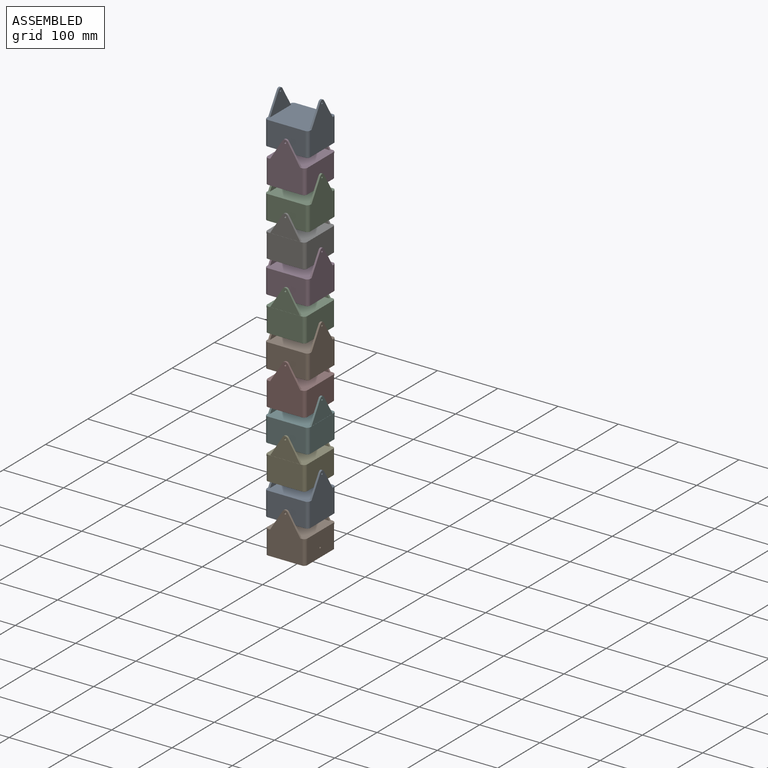
[diagram: assembled view]
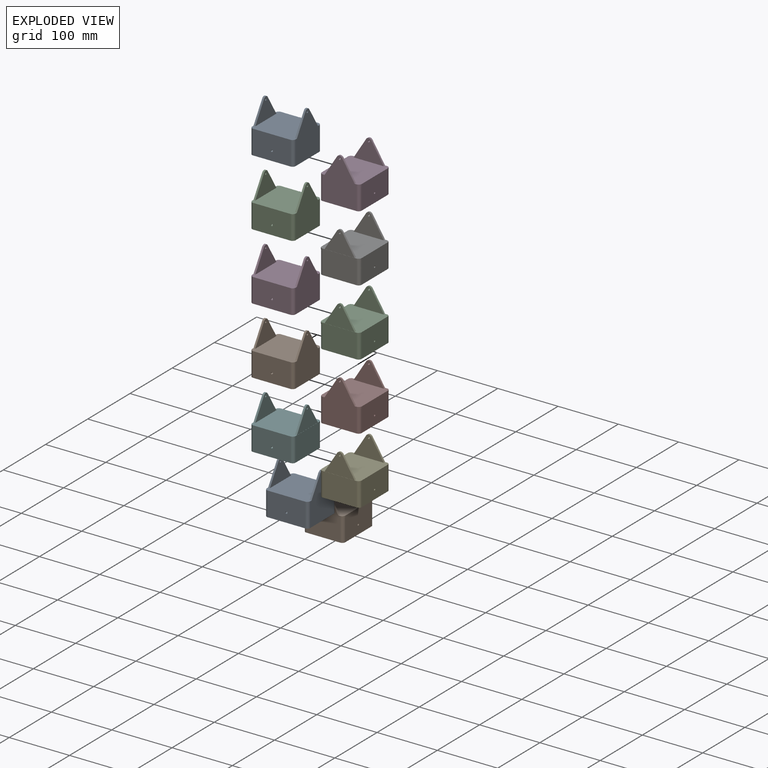
[diagram: exploded view]
GUIDED TOUR — MATED ASSEMBLY (Onshape document b3e24b0ed1801cee542685b6, AutoMate assembly b3e24b0ed1801cee542685b6_c61914f2f0b8bc4f30f1dec1_202b06473cfa04854a1284e7_default)

This assembly has 12 components, labeled P0..P11 below (a component is one placed occurrence of a part; the same part can appear more than once), held together by 11 mates. A mate is a constraint between two components; its type names the relative motion it leaves free:
  REVOLUTE — leaves rotation about the listed axis free (a hinge).
Axis/direction vectors are unit vectors and 'through' points are millimeter coordinates, both in the assembly's world frame.

MATES
  1. REVOLUTE "Revolute 3": P6 <-> P10, axis (0.000, 1.000, 0.000) through (-206.22, -134.45, 33.88) mm
  2. REVOLUTE "Revolute 5": P2 <-> P11, axis (0.000, -1.000, 0.000) through (-206.22, -68.45, -77.26) mm
  3. REVOLUTE "Revolute 2": P8 <-> P3, axis (0.000, -1.000, 0.000) through (-206.22, -134.45, 145.01) mm
  4. REVOLUTE "Revolute 4": P11 <-> P6, axis (1.000, 0.000, 0.000) through (-239.22, -101.45, -21.69) mm
  5. REVOLUTE "Revolute 7": P7 <-> P9, axis (0.000, -1.000, 0.000) through (-206.22, -68.45, -188.39) mm
  6. REVOLUTE "Revolute 9": P4 <-> P5, axis (0.000, 1.000, 0.000) through (-206.22, -134.45, -299.52) mm
  7. REVOLUTE "Revolute 6": P9 <-> P2, axis (-1.000, 0.000, 0.000) through (-173.22, -101.45, -132.82) mm
  8. REVOLUTE "Revolute 11": P1 <-> P0, axis (0.000, -1.000, 0.000) through (-206.22, -68.45, -410.65) mm
  9. REVOLUTE "Revolute 10": P0 <-> P4, axis (1.000, 0.000, 0.000) through (-239.22, -101.45, -355.09) mm
  10. REVOLUTE "Revolute 1": P3 <-> P10, axis (-1.000, 0.000, 0.000) through (-239.22, -101.45, 89.44) mm
  11. REVOLUTE "Revolute 8": P5 <-> P7, axis (-1.000, 0.000, 0.000) through (-173.22, -101.45, -243.95) mm

ASSEMBLY ORDER
  1. P1 — the base component [order verified]
  2. P0 [order verified]
  3. P4 [order verified]
  4. P5 [order verified]
  5. P7 [order verified]
  6. P9 [order verified]
  7. P2 [order verified]
  8. P11 [order verified]
  9. P6 [order verified]
  10. P10 [order verified]
  11. P3 [order verified]
  12. P8 [order verified]
Order-tag legend:
  [order verified] — this step's position reverses a verified removal order: the component was checked to insert without passing through the ones already placed.

Of the 12 components, 12 carry the full construction recipe — the FeatureScript program that regenerates the part's solid from scratch; the rest are supplied as boundary geometry only.
Each toured component is shown spotlighted twice — in the assembled view, then in the exploded view, where a leader line traces a displaced component back to its assembled socket (saturated green if recipe-attached, orange if geometry-only; every other component desaturated gray) — followed by its recipe or geometry summary and the mates that hold it.
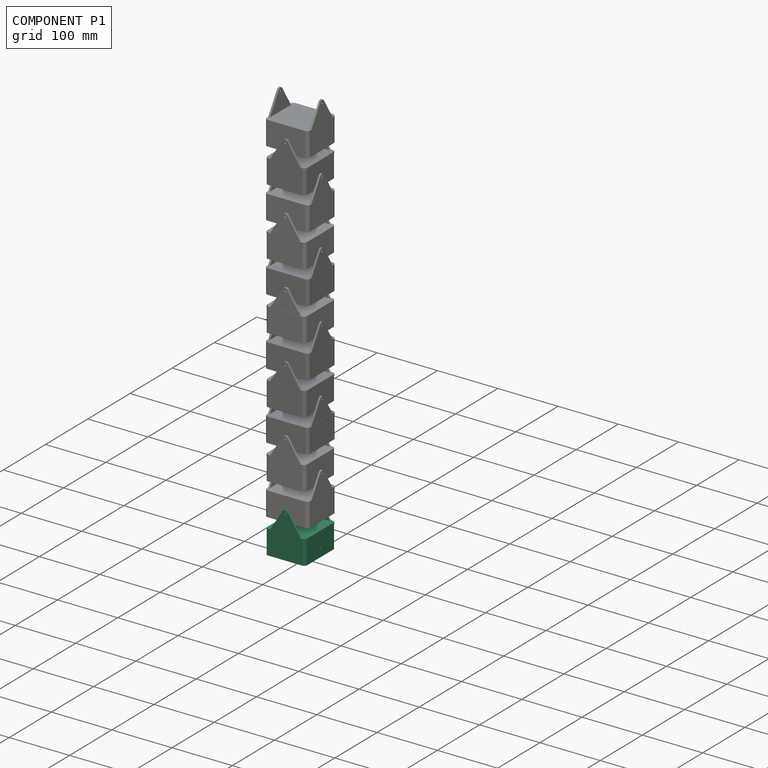
[diagram: component P1 — assembled]
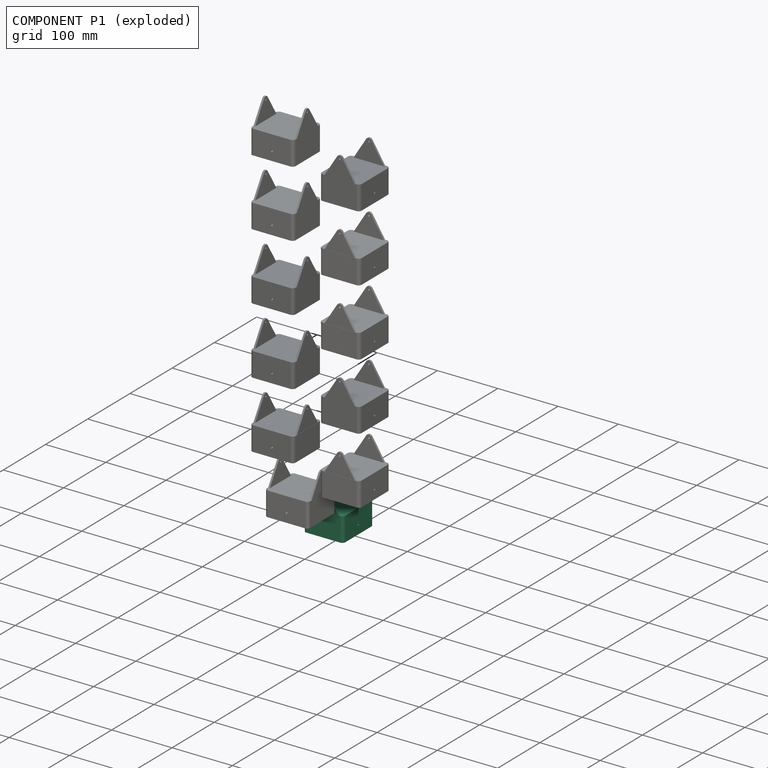
[diagram: component P1 — exploded]
COMPONENT P1 — same part as P0 (CADFS 00962118); its construction recipe is shown at P0.
Held by: REVOLUTE mate "Revolute 11" to P0.
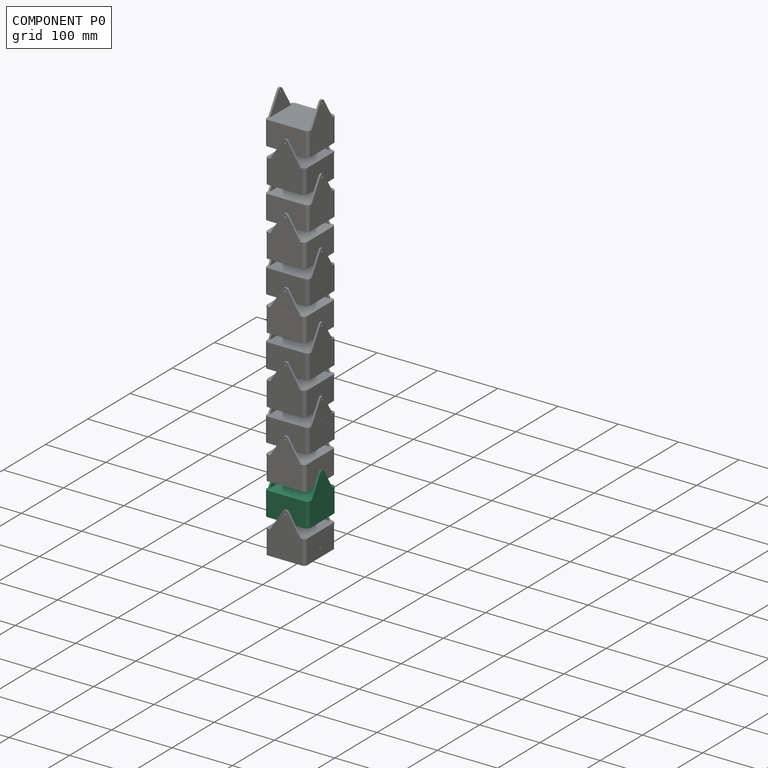
[diagram: component P0 — assembled]
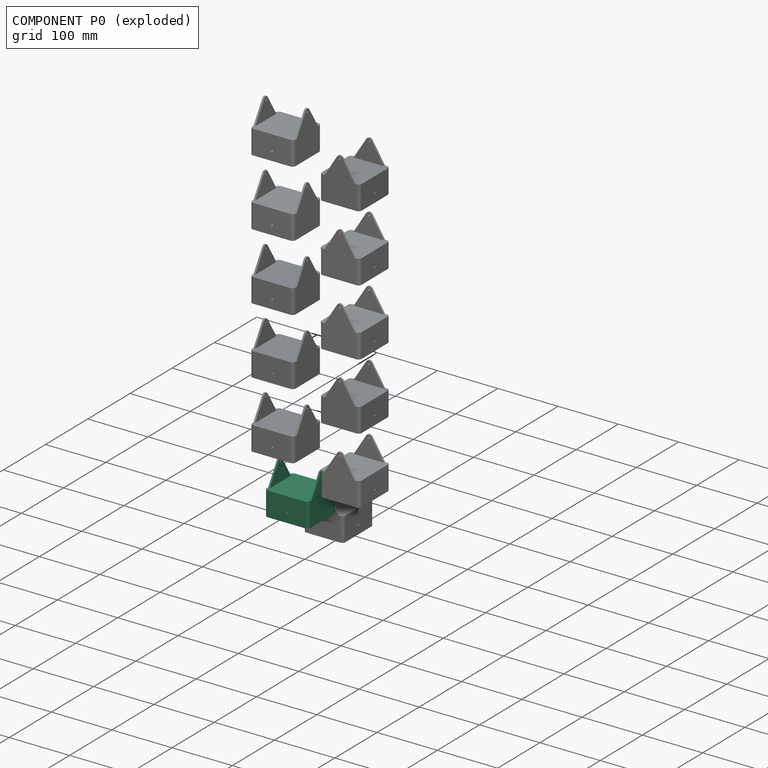
[diagram: component P0 — exploded]
COMPONENT P0 — recipe-attached (CADFS 00962118, mesh-verified: the recipe's output STEP matches this component's geometry to below the mesh-comparison resolution (tessellation chordal tolerance ~0.186 mm)).
Held by: REVOLUTE mate "Revolute 11" to P1; REVOLUTE mate "Revolute 10" to P4.
Construction recipe (FeatureScript — the CAD program that rebuilds this solid; sketch coordinates are in the units given by the * unit suffixes, e.g. mm):

FeatureScript 1511;
import(path : "onshape/std/geometry.fs", version : "1511.0");
import(path : "onshape/std/common.fs", version : "1511.0");
const mm = millimeter;
const VERTEX = EntityType.VERTEX;
const EDGE = EntityType.EDGE;
const FACE = EntityType.FACE;
const BODY = EntityType.BODY;
function v(x, y){return vector(x, y);}
function OD(order){return orderDisambiguation(order);}
function OSD(set){return originalSetDisambiguation(set);}
function TD(topology){return topologyDisambiguation(topology);}
function TDD(query){return trueDependencyDisambiguation(query);}
function sQuery(a, b, c) {return sketchEntityQuery(a, b, c);}

annotation { "Feature Type Name" : "Feature", "Feature Type Description" : "" }
export const myFeature = defineFeature(function(context is Context, id is Id, definition is map)
    precondition{}
    {
        {
            var Q0;
            Q0=qCreatedBy(makeId("Top.planeOp"),FACE);
            var sketch = newSketch(context, id + "F0", { "sketchPlane" : qUnion([Q0])});
            skLineSegment(sketch, "E0.bottom", {"start": v(-1241.02, 753.28) * mm, "end": v(1259.52, 753.28) * mm});
            skLineSegment(sketch, "E0.top", {"start": v(-1241.02, -770.72) * mm, "end": v(1259.52, -770.72) * mm});
            skLineSegment(sketch, "E0.left", {"start": v(-1241.02, 753.28) * mm, "end": v(-1241.02, -770.72) * mm});
            skLineSegment(sketch, "E0.right", {"start": v(1259.52, 753.28) * mm, "end": v(1259.52, -770.72) * mm});
            skLineSegment(sketch, "E1.bottom", {"start": v(-95.16, -71.78) * mm, "end": v(-39.16, -71.78) * mm});
            skLineSegment(sketch, "E1.top", {"start": v(-95.16, -131.78) * mm, "end": v(-39.16, -131.78) * mm});
            skLineSegment(sketch, "E1.left", {"start": v(-100.16, -76.78) * mm, "end": v(-100.16, -126.78) * mm});
            skLineSegment(sketch, "E1.right", {"start": v(-34.16, -76.78) * mm, "end": v(-34.16, -126.78) * mm});
            skLineSegment(sketch, "E2.0", {"start": v(-103.16, -73.78) * mm, "end": v(-103.16, -129.78) * mm});
            skLineSegment(sketch, "E2.1", {"start": v(-98.16, -68.78) * mm, "end": v(-36.16, -68.78) * mm});
            skLineSegment(sketch, "E2.2", {"start": v(-31.16, -73.78) * mm, "end": v(-31.16, -129.78) * mm});
            skLineSegment(sketch, "E2.3", {"start": v(-98.16, -134.78) * mm, "end": v(-36.16, -134.78) * mm});
            skPoint(sketch, "E3.visualSharp", {"position": v(-100.16, -71.78) * mm});
            skArc(sketch, "E3.filletArc", {"start": v(-95.16, -71.78) * mm, "mid": v(-98.7, -73.25) * mm, "end": v(-100.16, -76.78) * mm});
            skPoint(sketch, "E4.visualSharp", {"position": v(-34.16, -71.78) * mm});
            skArc(sketch, "E4.filletArc", {"start": v(-34.16, -76.78) * mm, "mid": v(-35.62, -73.25) * mm, "end": v(-39.16, -71.78) * mm});
            skPoint(sketch, "E5.visualSharp", {"position": v(-100.16, -131.78) * mm});
            skArc(sketch, "E5.filletArc", {"start": v(-100.16, -126.78) * mm, "mid": v(-98.7, -130.32) * mm, "end": v(-95.16, -131.78) * mm});
            skPoint(sketch, "E6.visualSharp", {"position": v(-34.16, -131.78) * mm});
            skArc(sketch, "E6.filletArc", {"start": v(-39.16, -131.78) * mm, "mid": v(-35.62, -130.32) * mm, "end": v(-34.16, -126.78) * mm});
            skPoint(sketch, "E7.visualSharp", {"position": v(-103.16, -68.78) * mm});
            skArc(sketch, "E7.filletArc", {"start": v(-98.16, -68.78) * mm, "mid": v(-101.7, -70.25) * mm, "end": v(-103.16, -73.78) * mm});
            skPoint(sketch, "E8.visualSharp", {"position": v(-31.16, -68.78) * mm});
            skArc(sketch, "E8.filletArc", {"start": v(-31.16, -73.78) * mm, "mid": v(-32.62, -70.25) * mm, "end": v(-36.16, -68.78) * mm});
            skPoint(sketch, "E9.visualSharp", {"position": v(-31.16, -134.78) * mm});
            skArc(sketch, "E9.filletArc", {"start": v(-36.16, -134.78) * mm, "mid": v(-32.62, -133.32) * mm, "end": v(-31.16, -129.78) * mm});
            skPoint(sketch, "E10.visualSharp", {"position": v(-103.16, -134.78) * mm});
            skArc(sketch, "E10.filletArc", {"start": v(-103.16, -129.78) * mm, "mid": v(-101.7, -133.32) * mm, "end": v(-98.16, -134.78) * mm});
            skSolve(sketch);
        }
        {
            var Q0;
            Q0=makeQuery(id+"F0.imprint","IMPRINT",FACE,{"disambiguationData":[TD([[makeQuery(id+"F0.imprint","IMPRINT",EDGE,{"derivedFrom":sQuery(id+"F0.wireOp",EDGE,"E1.bottom")}),1.0]])]});
            extrude(context, id + "F1", {"entities" : qUnion([Q0]), "depth" : 40 * mm, "offsetDistance" : 25 * mm});
        }
        {
            var Q0;
            Q0=makeQuery(id+"F1.opExtrude","SWEPT_FACE",FACE,{"disambiguationData":[OSD([sQuery(id+"F0.wireOp",EDGE,"E1.left")])]});
            var sketch = newSketch(context, id + "F2", { "sketchPlane" : qUnion([Q0])});
            skLineSegment(sketch, "E11", {"start": v(-126.78, 40) * mm, "end": v(-106.02, 73.22) * mm});
            skLineSegment(sketch, "E12", {"start": v(-76.78, 40) * mm, "end": v(-97.54, 73.22) * mm});
            skPoint(sketch, "E13.start.orphan", {"position": v(-101.78, 40) * mm});
            skPoint(sketch, "E14.visualSharp", {"position": v(-101.78, 80) * mm});
            skArc(sketch, "E14.filletArc", {"start": v(-97.54, 73.22) * mm, "mid": v(-101.78, 75.57) * mm, "end": v(-106.02, 73.22) * mm});
            skSolve(sketch);
        }
        {
            var Q0;
            Q0 = qSketchRegion(id + "F2", true);
            var Q1;
            Q1=makeQuery(id+"F2.imprint","IMPRINT",FACE,{"disambiguationData":[TD([[makeQuery(id+"F2.imprint","IMPRINT",EDGE,{"derivedFrom":sQuery(id+"F2.wireOp",EDGE,"E11")}),-1.0]])]});
            extrude(context, id + "F3", {"entities" : qUnion([Q0, Q1]), "operationType" : NewBodyOperationType.ADD, "oppositeDirection" : true, "depth" : 3 * mm, "offsetDistance" : 25 * mm});
        }
        {
            var Q0;
            Q0=makeQuery(id+"F1.opExtrude","SWEPT_FACE",FACE,{"disambiguationData":[OSD([sQuery(id+"F0.wireOp",EDGE,"E1.right")])]});
            var sketch = newSketch(context, id + "F4", { "sketchPlane" : qUnion([Q0])});
            skLineSegment(sketch, "E15", {"start": v(76.78, 40) * mm, "end": v(97.54, 73.22) * mm});
            skLineSegment(sketch, "E16", {"start": v(126.78, 40) * mm, "end": v(106.02, 73.22) * mm});
            skLineSegment(sketch, "E17", {"start": v(126.78, 40) * mm, "end": v(80.84, 40) * mm});
            skPoint(sketch, "E18.start.orphan", {"position": v(101.78, 40) * mm});
            skPoint(sketch, "E19.visualSharp", {"position": v(101.78, 80) * mm});
            skArc(sketch, "E19.filletArc", {"start": v(106.02, 73.22) * mm, "mid": v(101.78, 75.57) * mm, "end": v(97.54, 73.22) * mm});
            skSolve(sketch);
        }
        {
            var Q0;
            {var subQ1=sQuery(id+"F4.wireOp",EDGE,"E15");Q0=makeQuery(id+"F4.imprint","IMPRINT",FACE,{"disambiguationData":[TD([[makeQuery(id+"F4.imprint","IMPRINT",EDGE,{"derivedFrom":subQ1}),-1.0]])]});}
            extrude(context, id + "F5", {"entities" : qUnion([Q0]), "operationType" : NewBodyOperationType.ADD, "oppositeDirection" : true, "depth" : 3 * mm, "offsetDistance" : 25 * mm});
        }
        {
            var Q0;
            {var subQ0=sQuery(id+"F0.wireOp",EDGE,"E6.filletArc");var subQ1=sQuery(id+"F0.wireOp",EDGE,"E5.filletArc");var subQ2=sQuery(id+"F0.wireOp",EDGE,"E2.3");var subQ3=sQuery(id+"F0.wireOp",EDGE,"E2.2");var subQ4=sQuery(id+"F0.wireOp",EDGE,"E1.top");var subQ5=sQuery(id+"F0.wireOp",EDGE,"E1.left");var subQ7=sQuery(id+"F0.wireOp",EDGE,"E9.filletArc");var subQ8=sQuery(id+"F0.wireOp",EDGE,"E1.right");var subQ11=sQuery(id+"F0.wireOp",EDGE,"E10.filletArc");var subQ12=sQuery(id+"F0.wireOp",EDGE,"E2.0");Q0=makeQuery(id+"F5.boolean.opBoolean","SPLIT",FACE,{"disambiguationData":[TD([makeQuery(id+"F1.opExtrude","SWEPT_FACE",FACE,{"disambiguationData":[OSD([subQ4])]})])],"derivedFrom":makeQuery(id+"F1.opExtrude","CAP_FACE",FACE,{"disambiguationData":[OSD([sQuery(id+"F0.wireOp",EDGE,"E1.bottom"),subQ4,subQ5,subQ8,subQ12,sQuery(id+"F0.wireOp",EDGE,"E2.1"),subQ3,subQ2,sQuery(id+"F0.wireOp",EDGE,"E3.filletArc"),sQuery(id+"F0.wireOp",EDGE,"E4.filletArc"),subQ1,subQ0,sQuery(id+"F0.wireOp",EDGE,"E7.filletArc"),sQuery(id+"F0.wireOp",EDGE,"E8.filletArc"),subQ7,subQ11])],"isStart":false})});}
            var sketch = newSketch(context, id + "F6", { "sketchPlane" : qUnion([Q0])});
            skLineSegment(sketch, "E20.bottom", {"start": v(-98.38, -68.58) * mm, "end": v(-36.38, -68.58) * mm});
            skLineSegment(sketch, "E20.top", {"start": v(-98.38, -134.58) * mm, "end": v(-36.38, -134.58) * mm});
            skLineSegment(sketch, "E20.left", {"start": v(-103.38, -73.58) * mm, "end": v(-103.38, -129.58) * mm});
            skLineSegment(sketch, "E20.right", {"start": v(-31.38, -73.58) * mm, "end": v(-31.38, -129.58) * mm});
            skPoint(sketch, "E21.visualSharp", {"position": v(-103.38, -68.58) * mm});
            skArc(sketch, "E21.filletArc", {"start": v(-98.38, -68.58) * mm, "mid": v(-101.91, -70.04) * mm, "end": v(-103.38, -73.58) * mm});
            skPoint(sketch, "E22.visualSharp", {"position": v(-31.38, -68.58) * mm});
            skArc(sketch, "E22.filletArc", {"start": v(-31.38, -73.58) * mm, "mid": v(-32.84, -70.04) * mm, "end": v(-36.38, -68.58) * mm});
            skPoint(sketch, "E23.visualSharp", {"position": v(-31.38, -134.58) * mm});
            skArc(sketch, "E23.filletArc", {"start": v(-36.38, -134.58) * mm, "mid": v(-32.84, -133.12) * mm, "end": v(-31.38, -129.58) * mm});
            skPoint(sketch, "E24.visualSharp", {"position": v(-103.38, -134.58) * mm});
            skArc(sketch, "E24.filletArc", {"start": v(-103.38, -129.58) * mm, "mid": v(-101.91, -133.12) * mm, "end": v(-98.38, -134.58) * mm});
            skSolve(sketch);
        }
        {
            var Q0;
            Q0=makeQuery(id+"F6.imprint","IMPRINT",FACE,{"disambiguationData":[TD([[makeQuery(id+"F6.imprint","IMPRINT",EDGE,{"derivedFrom":sQuery(id+"F6.wireOp",EDGE,"E20.bottom")}),-1.0]])]});
            extrude(context, id + "F7", {"entities" : qUnion([Q0]), "operationType" : NewBodyOperationType.ADD, "oppositeDirection" : true, "depth" : 3 * mm, "offsetDistance" : 25 * mm});
        }
        {
            var Q0;
            Q0=makeQuery(id+"F5.boolean.opBoolean","MERGE",FACE,{"derivedFrom":[makeQuery(id+"F1.opExtrude","SWEPT_FACE",FACE,{"disambiguationData":[OSD([sQuery(id+"F0.wireOp",EDGE,"E2.2")])]}),makeQuery(id+"F5.opExtrude","CAP_FACE",FACE,{"disambiguationData":[OSD([sQuery(id+"F0.wireOp",EDGE,"E1.right"),sQuery(id+"F4.wireOp",EDGE,"E15"),sQuery(id+"F4.wireOp",EDGE,"E16"),sQuery(id+"F4.wireOp",EDGE,"E17"),sQuery(id+"F4.wireOp",EDGE,"E19.filletArc")])],"isStart":false})]});
            var sketch = newSketch(context, id + "F8", { "sketchPlane" : qUnion([Q0])});
            skPoint(sketch, "E25", {"position": v(-101.78, 70.57) * mm});
            skSolve(sketch);
        }
        {
            var Q0;
            Q0=sQuery(id+"F8.wireOp",VERTEX,"E25");
            var Q1;
            Q1=makeQuery(id+"F1.opExtrude","SWEPT_BODY",BODY,{"disambiguationData":[OSD([sQuery(id+"F0.wireOp",EDGE,"E1.bottom"),sQuery(id+"F0.wireOp",EDGE,"E1.top"),sQuery(id+"F0.wireOp",EDGE,"E1.left"),sQuery(id+"F0.wireOp",EDGE,"E1.right"),sQuery(id+"F0.wireOp",EDGE,"E2.0"),sQuery(id+"F0.wireOp",EDGE,"E2.1"),sQuery(id+"F0.wireOp",EDGE,"E2.2"),sQuery(id+"F0.wireOp",EDGE,"E2.3"),sQuery(id+"F0.wireOp",EDGE,"E3.filletArc"),sQuery(id+"F0.wireOp",EDGE,"E4.filletArc"),sQuery(id+"F0.wireOp",EDGE,"E5.filletArc"),sQuery(id+"F0.wireOp",EDGE,"E6.filletArc"),sQuery(id+"F0.wireOp",EDGE,"E7.filletArc"),sQuery(id+"F0.wireOp",EDGE,"E8.filletArc"),sQuery(id+"F0.wireOp",EDGE,"E9.filletArc"),sQuery(id+"F0.wireOp",EDGE,"E10.filletArc")])]});
            hole(context, id + "F9", {"style" : HoleStyle.SIMPLE, "endStyle" : HoleEndStyle.THROUGH, "holeDiameter" : 3.1 * mm, "majorDiameter" : 5 * mm, "isTappedThrough" : true, "tappedDepth" : 12 * mm, "tapClearance" : 3, "locations" : qUnion([Q0]), "scope" : qUnion([Q1])});
        }
        {
            var Q0;
            Q0=makeQuery(id+"F1.opExtrude","SWEPT_FACE",FACE,{"disambiguationData":[OSD([sQuery(id+"F0.wireOp",EDGE,"E2.3")])]});
            var sketch = newSketch(context, id + "F10", { "sketchPlane" : qUnion([Q0])});
            skPoint(sketch, "E26", {"position": v(-67.16, 15) * mm});
            skPoint(sketch, "E26.positionSnap0", {"position": v(-67.16, 0) * mm});
            skSolve(sketch);
        }
        {
            var Q0;
            Q0=sQuery(id+"F10.wireOp",VERTEX,"E26");
            var Q1;
            Q1=makeQuery(id+"F1.opExtrude","SWEPT_BODY",BODY,{"disambiguationData":[OSD([sQuery(id+"F0.wireOp",EDGE,"E1.bottom"),sQuery(id+"F0.wireOp",EDGE,"E1.top"),sQuery(id+"F0.wireOp",EDGE,"E1.left"),sQuery(id+"F0.wireOp",EDGE,"E1.right"),sQuery(id+"F0.wireOp",EDGE,"E2.0"),sQuery(id+"F0.wireOp",EDGE,"E2.1"),sQuery(id+"F0.wireOp",EDGE,"E2.2"),sQuery(id+"F0.wireOp",EDGE,"E2.3"),sQuery(id+"F0.wireOp",EDGE,"E3.filletArc"),sQuery(id+"F0.wireOp",EDGE,"E4.filletArc"),sQuery(id+"F0.wireOp",EDGE,"E5.filletArc"),sQuery(id+"F0.wireOp",EDGE,"E6.filletArc"),sQuery(id+"F0.wireOp",EDGE,"E7.filletArc"),sQuery(id+"F0.wireOp",EDGE,"E8.filletArc"),sQuery(id+"F0.wireOp",EDGE,"E9.filletArc"),sQuery(id+"F0.wireOp",EDGE,"E10.filletArc")])]});
            hole(context, id + "F11", {"style" : HoleStyle.SIMPLE, "endStyle" : HoleEndStyle.THROUGH, "holeDiameter" : 3.1 * mm, "majorDiameter" : 5 * mm, "isTappedThrough" : true, "tappedDepth" : 12 * mm, "tapClearance" : 3, "locations" : qUnion([Q0]), "scope" : qUnion([Q1])});
        }
    });
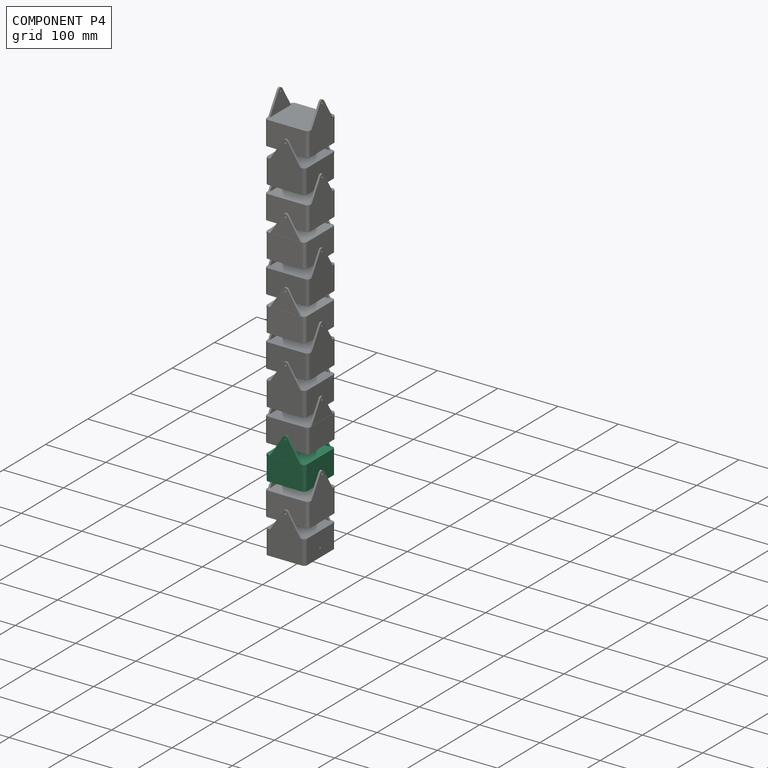
[diagram: component P4 — assembled]
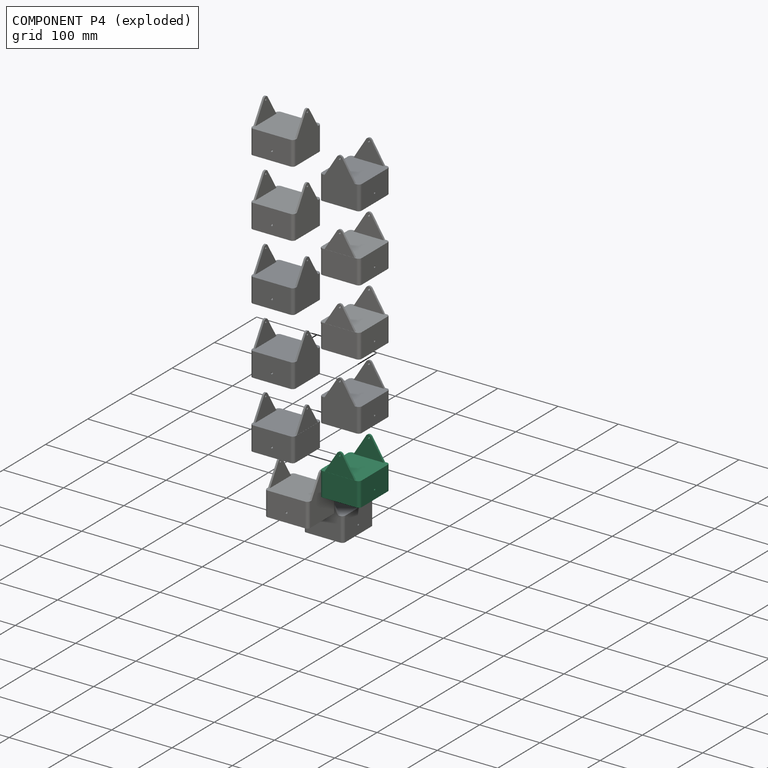
[diagram: component P4 — exploded]
COMPONENT P4 — same part as P0 (CADFS 00962118); its construction recipe is shown at P0.
Held by: REVOLUTE mate "Revolute 9" to P5; REVOLUTE mate "Revolute 10" to P0.
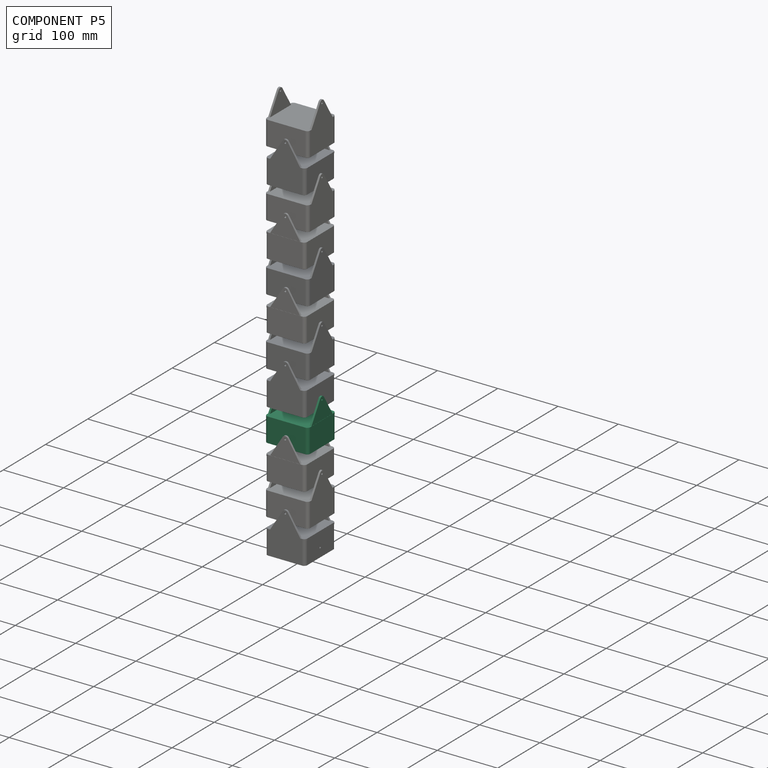
[diagram: component P5 — assembled]
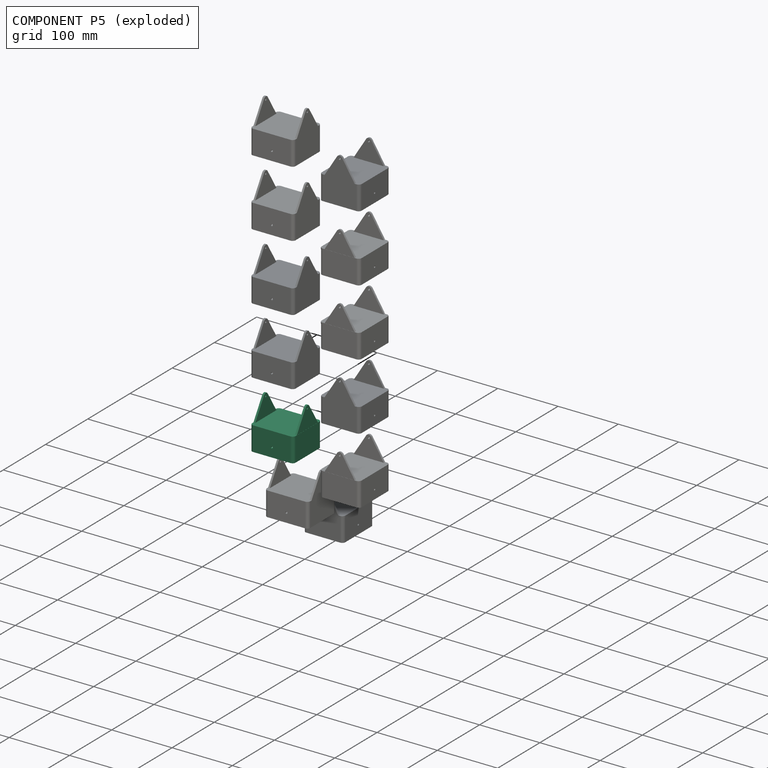
[diagram: component P5 — exploded]
COMPONENT P5 — same part as P0 (CADFS 00962118); its construction recipe is shown at P0.
Held by: REVOLUTE mate "Revolute 9" to P4; REVOLUTE mate "Revolute 8" to P7.
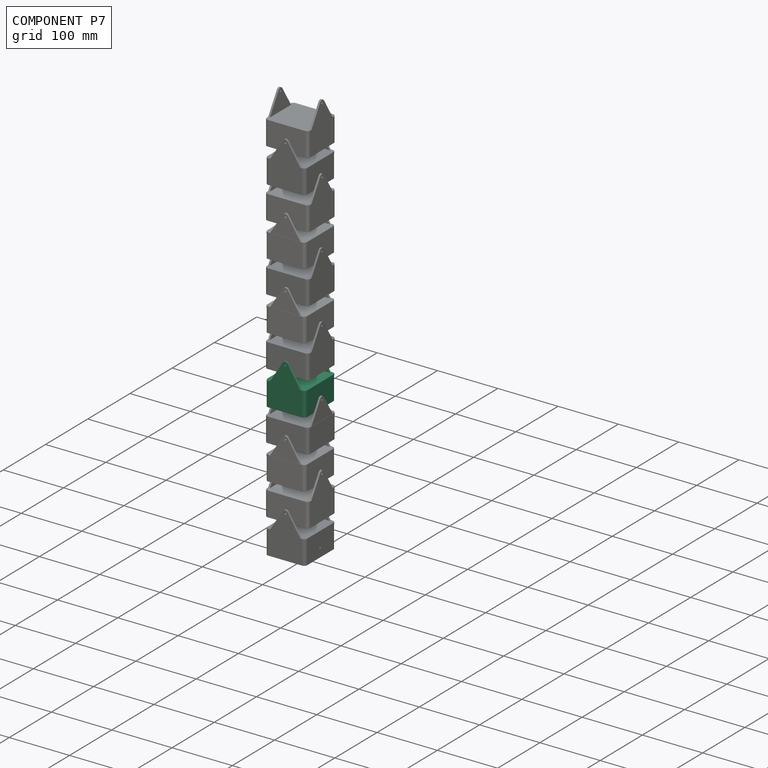
[diagram: component P7 — assembled]
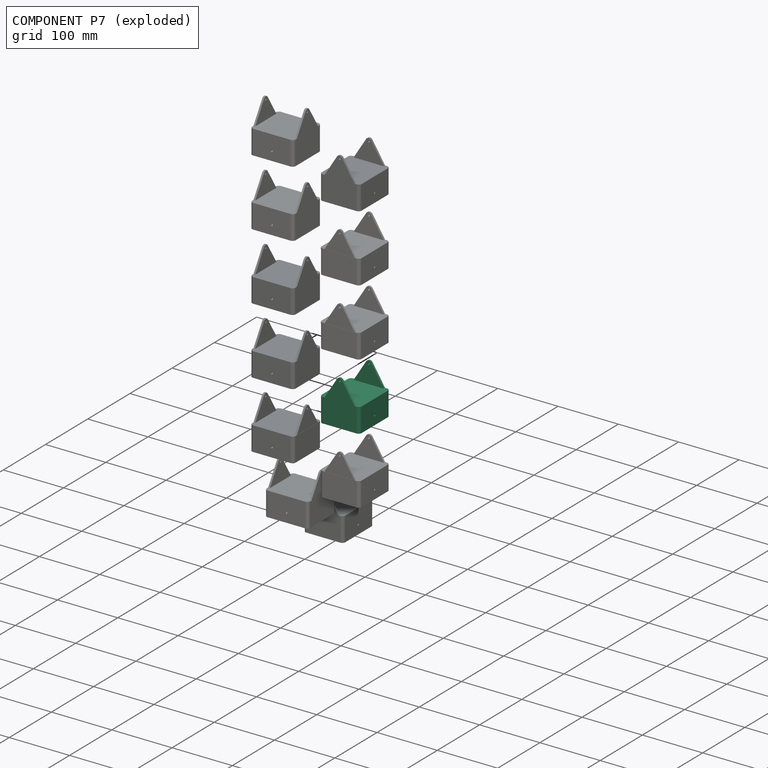
[diagram: component P7 — exploded]
COMPONENT P7 — same part as P0 (CADFS 00962118); its construction recipe is shown at P0.
Held by: REVOLUTE mate "Revolute 7" to P9; REVOLUTE mate "Revolute 8" to P5.
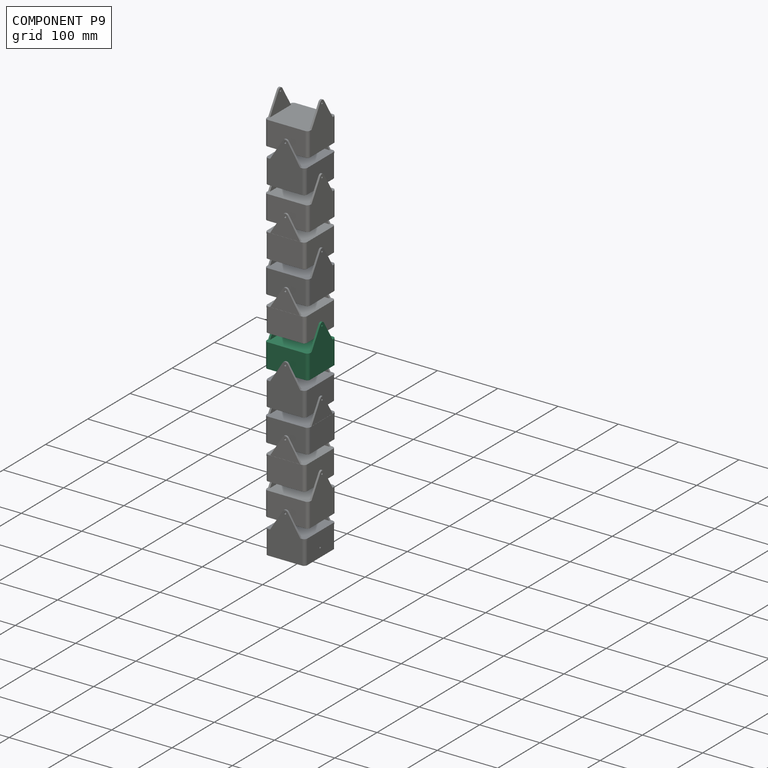
[diagram: component P9 — assembled]
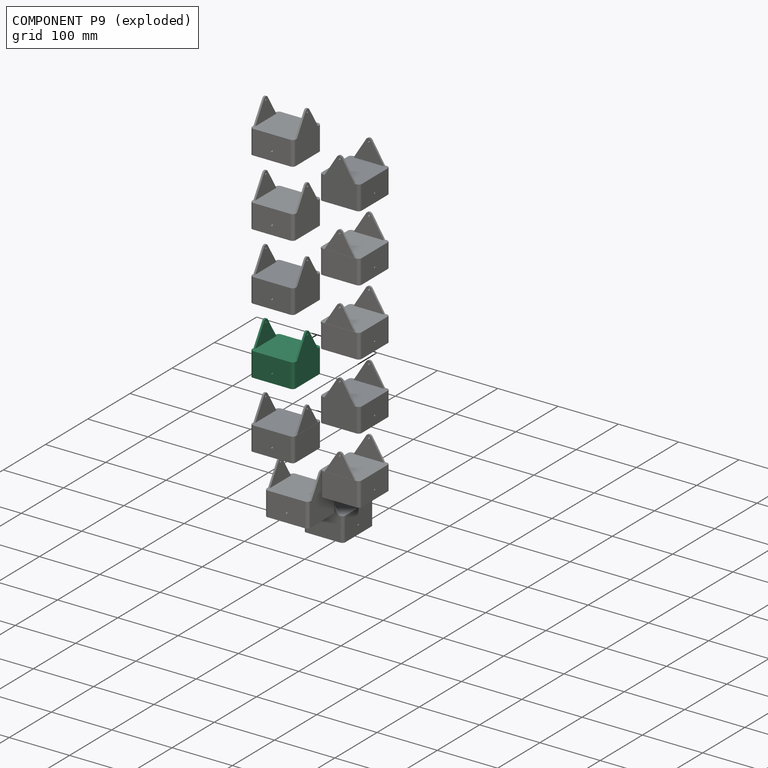
[diagram: component P9 — exploded]
COMPONENT P9 — same part as P0 (CADFS 00962118); its construction recipe is shown at P0.
Held by: REVOLUTE mate "Revolute 7" to P7; REVOLUTE mate "Revolute 6" to P2.
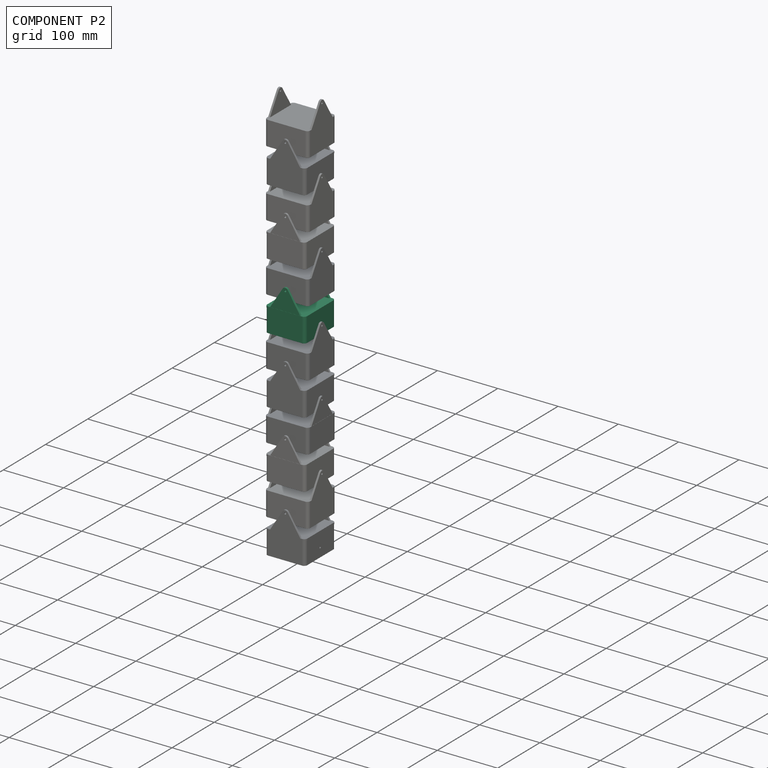
[diagram: component P2 — assembled]
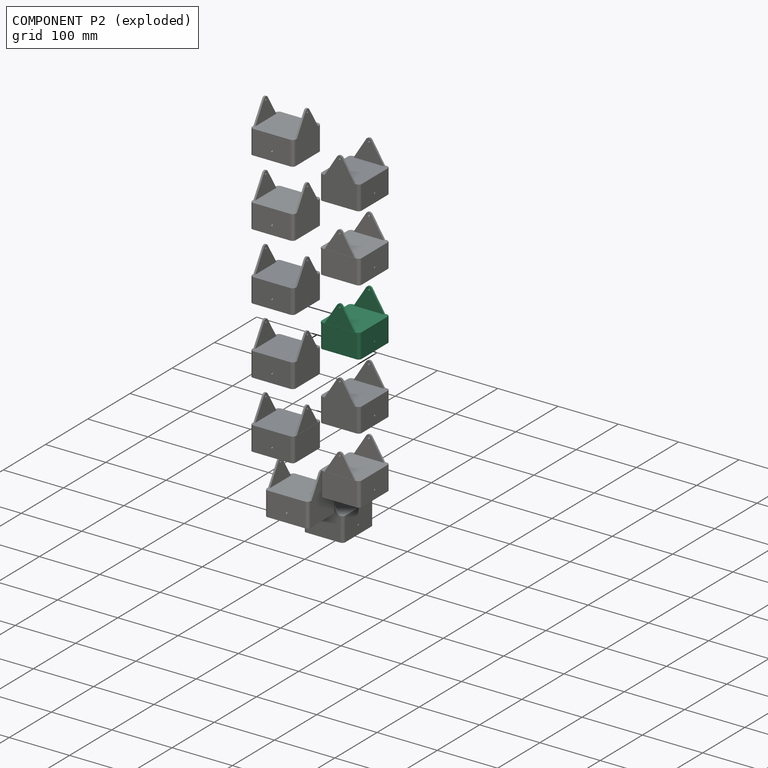
[diagram: component P2 — exploded]
COMPONENT P2 — same part as P0 (CADFS 00962118); its construction recipe is shown at P0.
Held by: REVOLUTE mate "Revolute 5" to P11; REVOLUTE mate "Revolute 6" to P9.
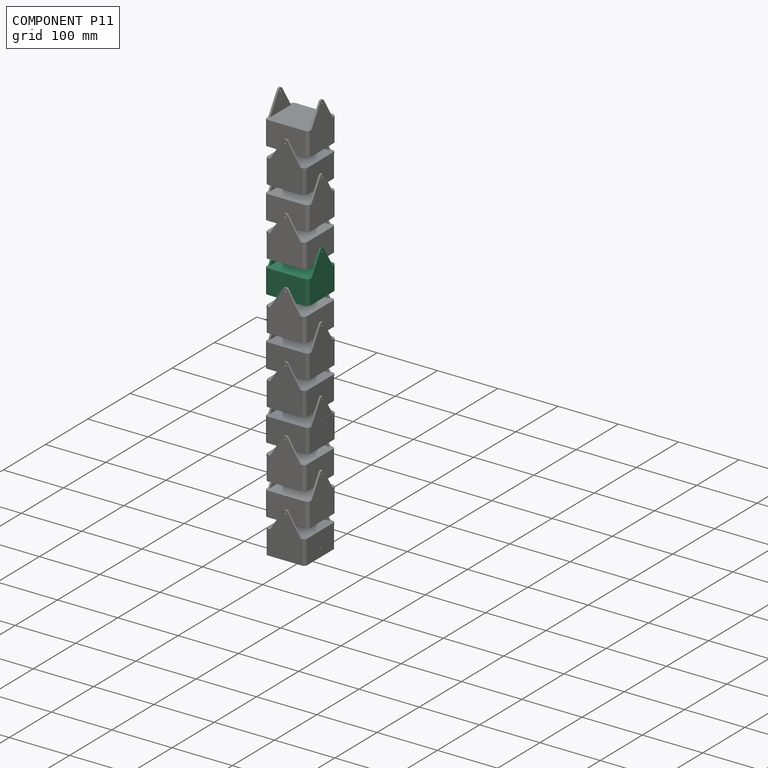
[diagram: component P11 — assembled]
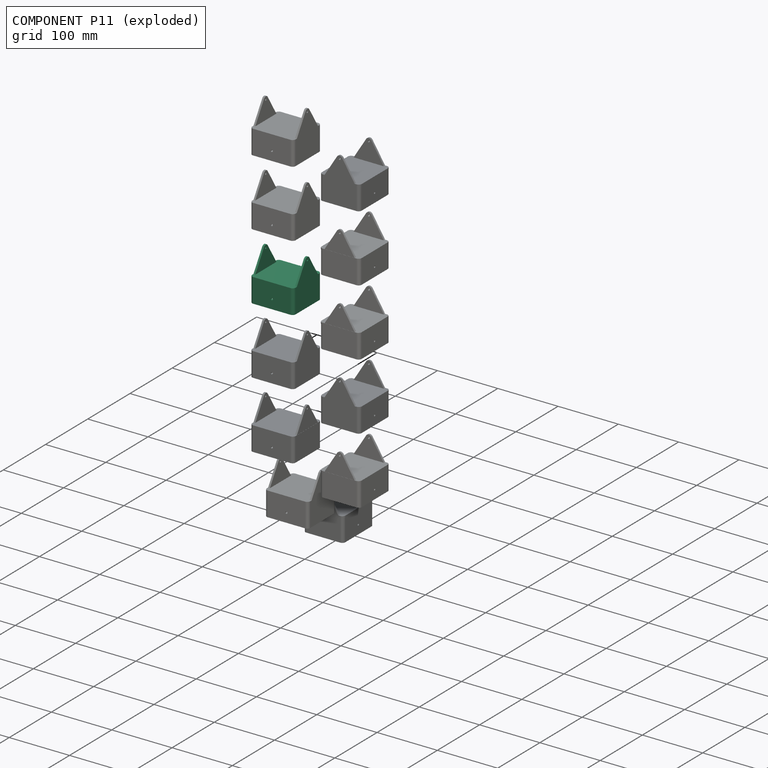
[diagram: component P11 — exploded]
COMPONENT P11 — same part as P0 (CADFS 00962118); its construction recipe is shown at P0.
Held by: REVOLUTE mate "Revolute 5" to P2; REVOLUTE mate "Revolute 4" to P6.
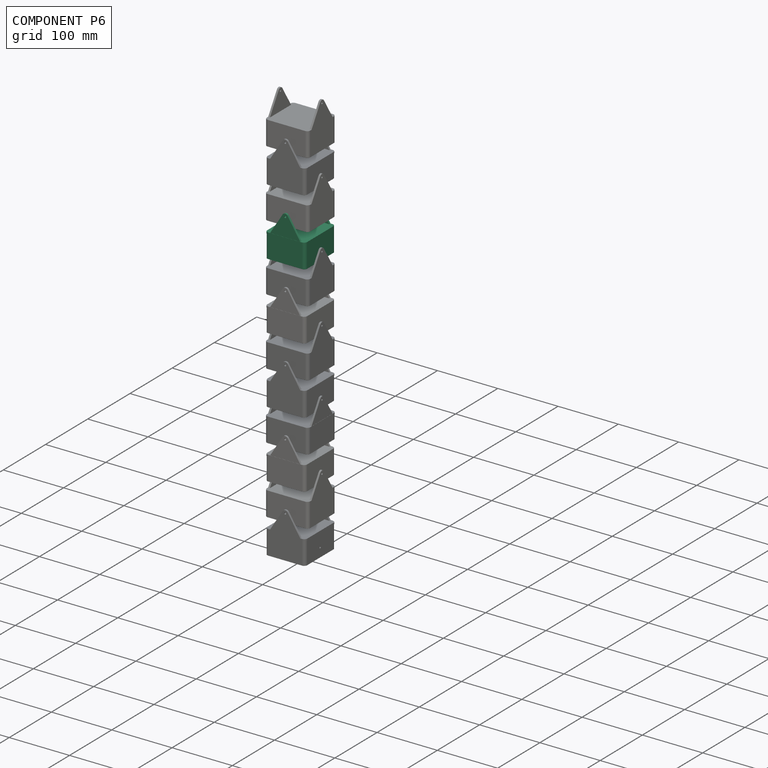
[diagram: component P6 — assembled]
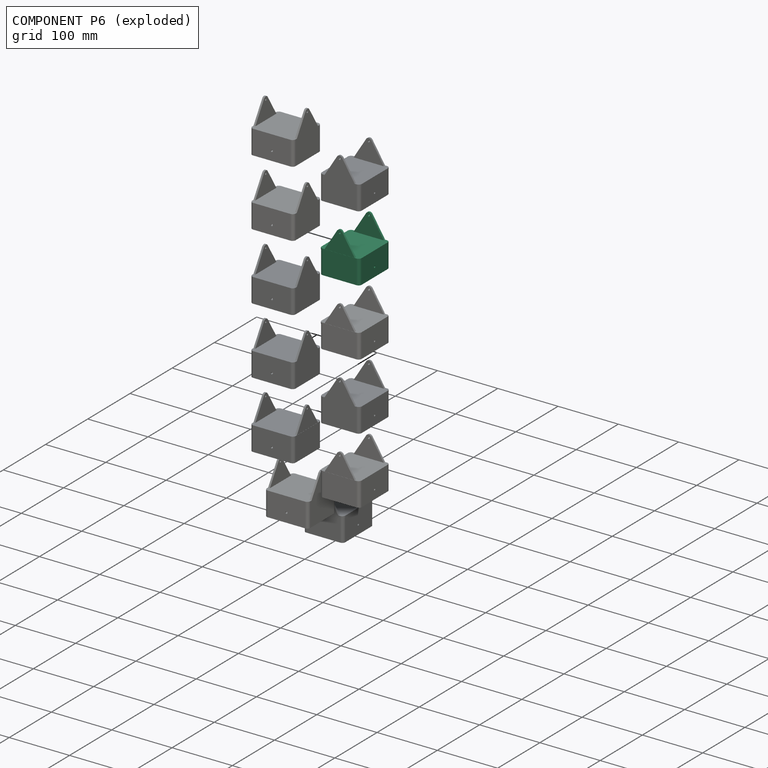
[diagram: component P6 — exploded]
COMPONENT P6 — same part as P0 (CADFS 00962118); its construction recipe is shown at P0.
Held by: REVOLUTE mate "Revolute 3" to P10; REVOLUTE mate "Revolute 4" to P11.
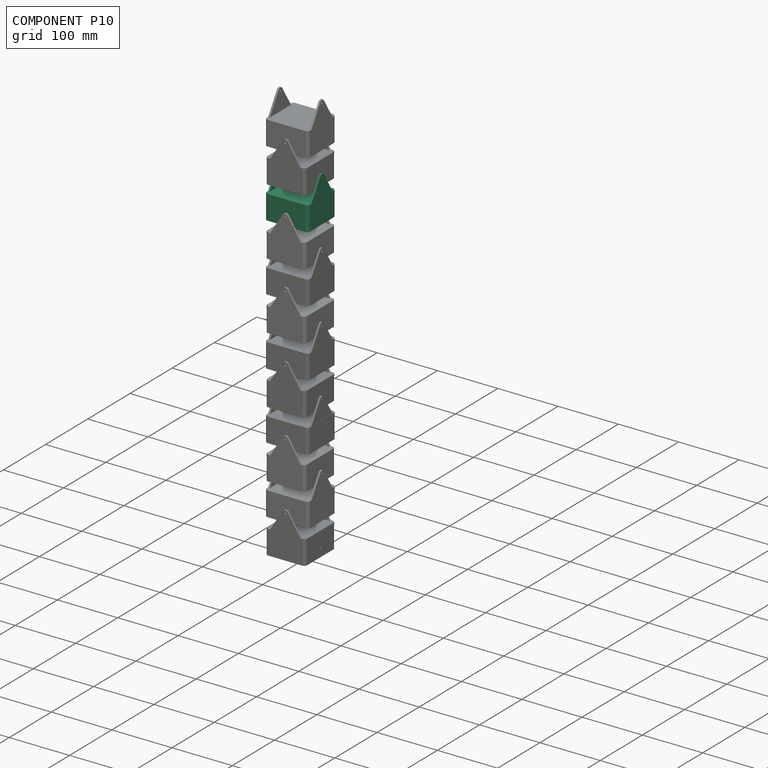
[diagram: component P10 — assembled]
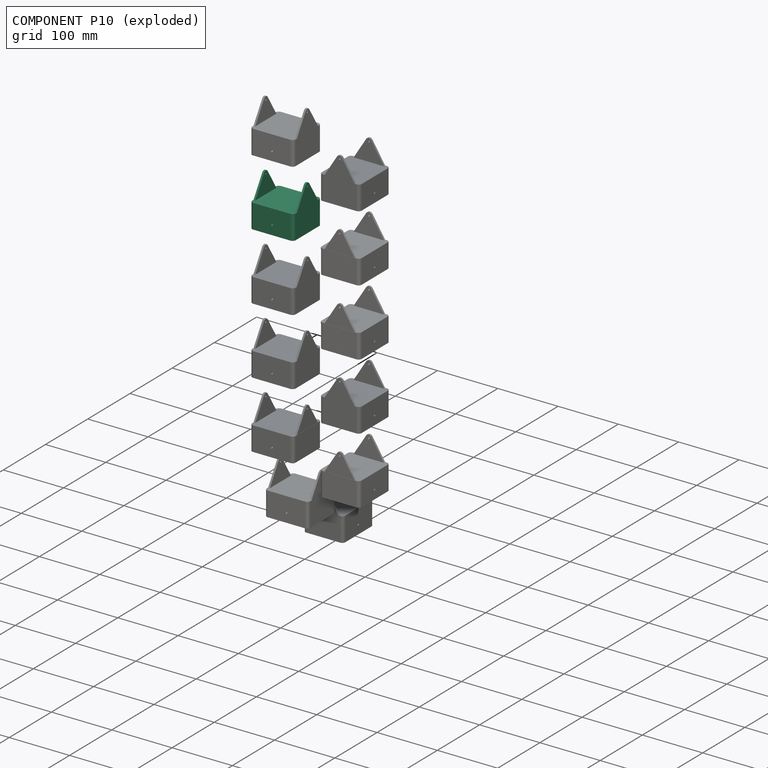
[diagram: component P10 — exploded]
COMPONENT P10 — same part as P0 (CADFS 00962118); its construction recipe is shown at P0.
Held by: REVOLUTE mate "Revolute 3" to P6; REVOLUTE mate "Revolute 1" to P3.
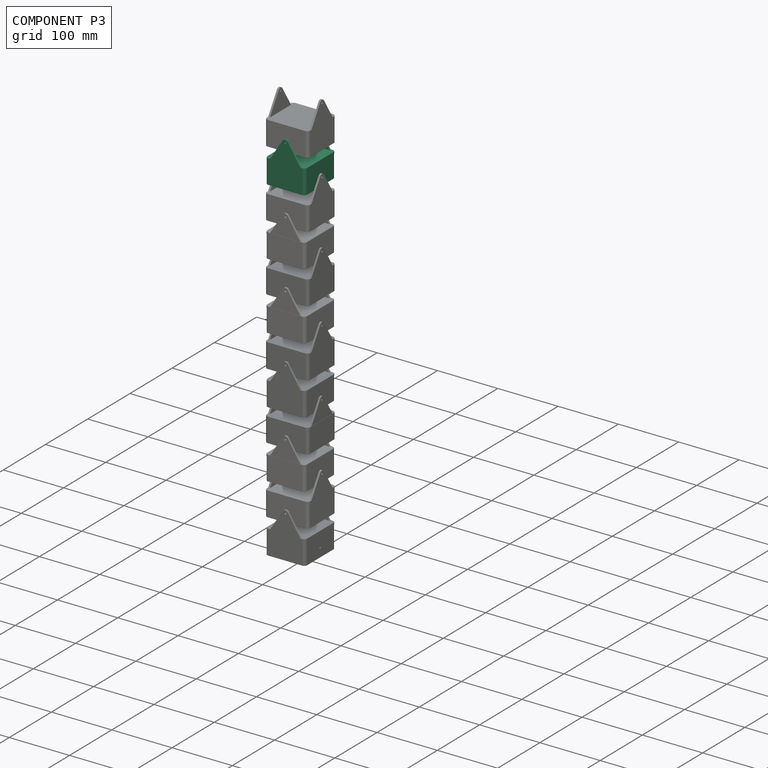
[diagram: component P3 — assembled]
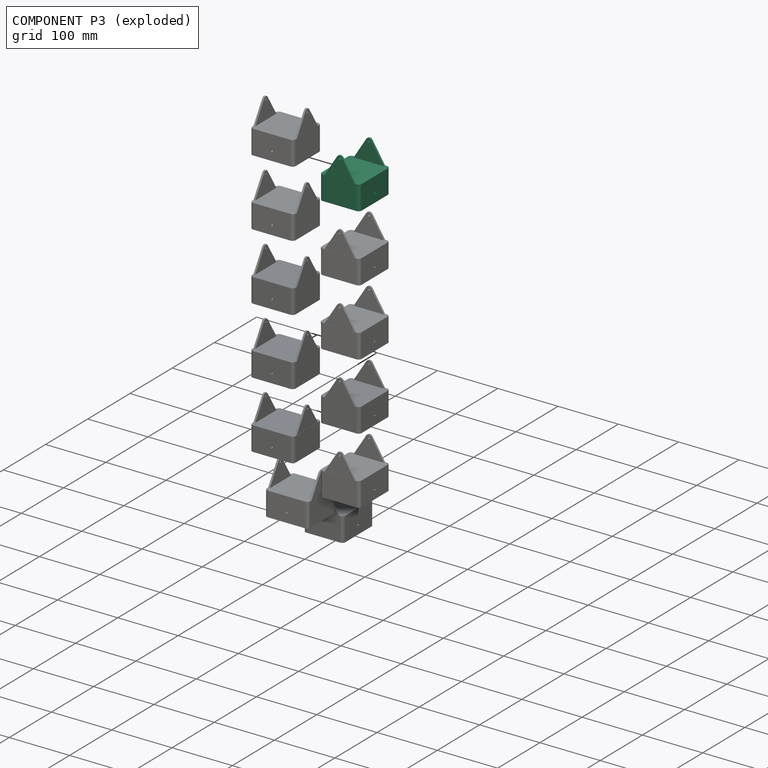
[diagram: component P3 — exploded]
COMPONENT P3 — same part as P0 (CADFS 00962118); its construction recipe is shown at P0.
Held by: REVOLUTE mate "Revolute 2" to P8; REVOLUTE mate "Revolute 1" to P10.
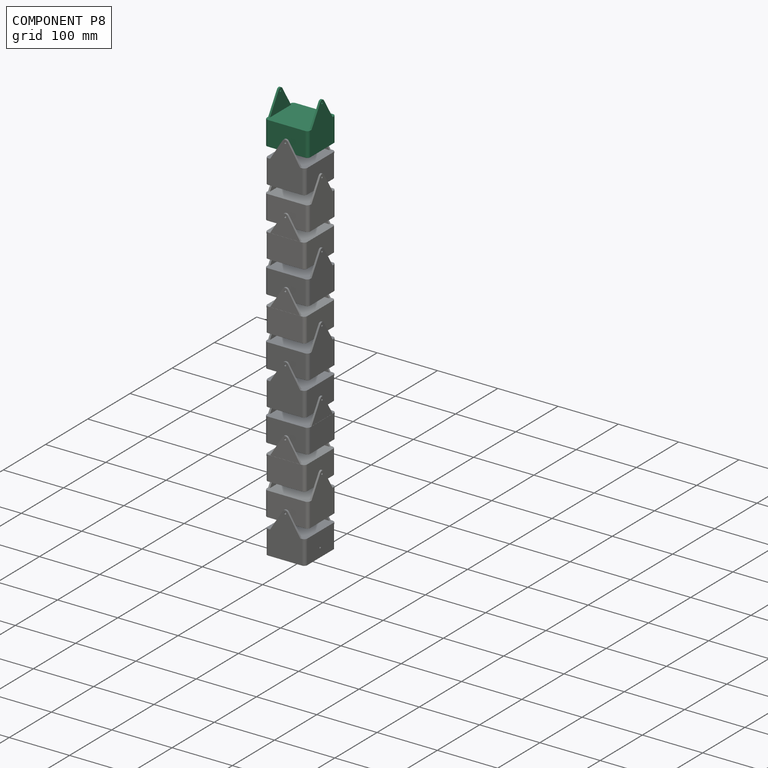
[diagram: component P8 — assembled]
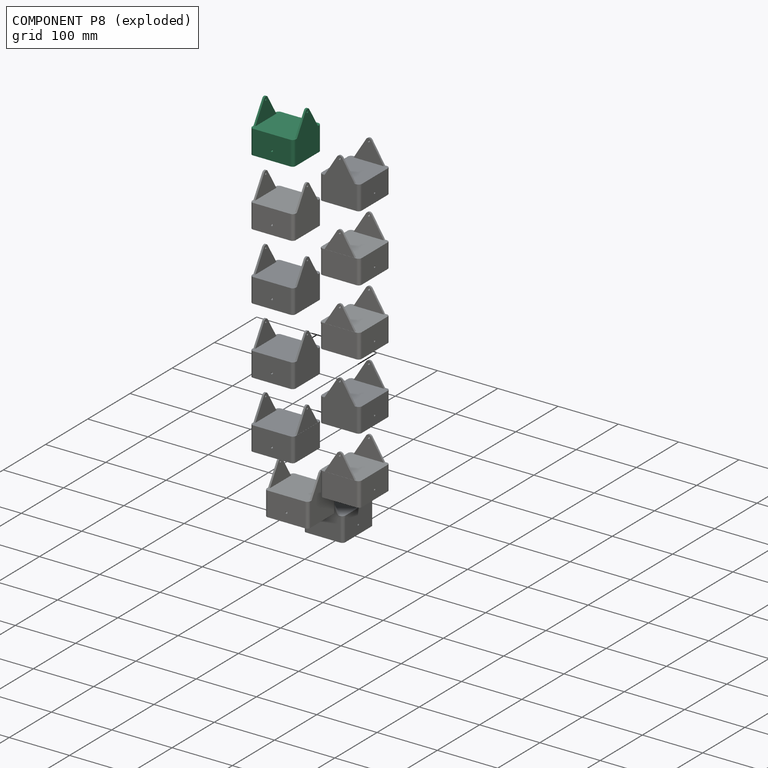
[diagram: component P8 — exploded]
COMPONENT P8 — same part as P0 (CADFS 00962118); its construction recipe is shown at P0.
Held by: REVOLUTE mate "Revolute 2" to P3.
PROVENANCE & LICENSES
Assembly (occurrences, transforms, mates, per-part STEP geometry): AutoMate dataset, Zenodo record 7776208, CC0.
Construction recipes: CADFS (HuggingFace VladPyatov/CADFS, CC-BY-4.0, layered over the ABC dataset), FeatureScript reconstruction programs keyed by ABC model id.
Join: ABC meta listings map ABC model id -> Onshape documentId; within a shared document, parts are matched by geometric signature (bounding-box dims + volume at 0.1% relative tolerance, exact B-rep face/solid counts).
Verification: 12 of this assembly's 12 components carry a recipe attachment, and every attachment is mesh-verified: the CADFS STEP and the AutoMate member STEP were compared as meshes in their shared local frame (symmetric sampled-point-to-mesh distance); worst across the 12 attachments: below the mesh-comparison resolution (tessellation chordal tolerance ~0.186 mm) on a 124 mm part.
Renders: orthographic iso camera (az 35 / el 25); the floor grid conveys scale (grid pitch printed in each image; no ruler). In the exploded view each component is displaced by its stored offset vector: the offsets alone carry the explosion direction (mate normal/axis signs are not orientation cues and do not encode it), and separation distances are assigned per mate-chain, not proportionally to assembly-order depth.
